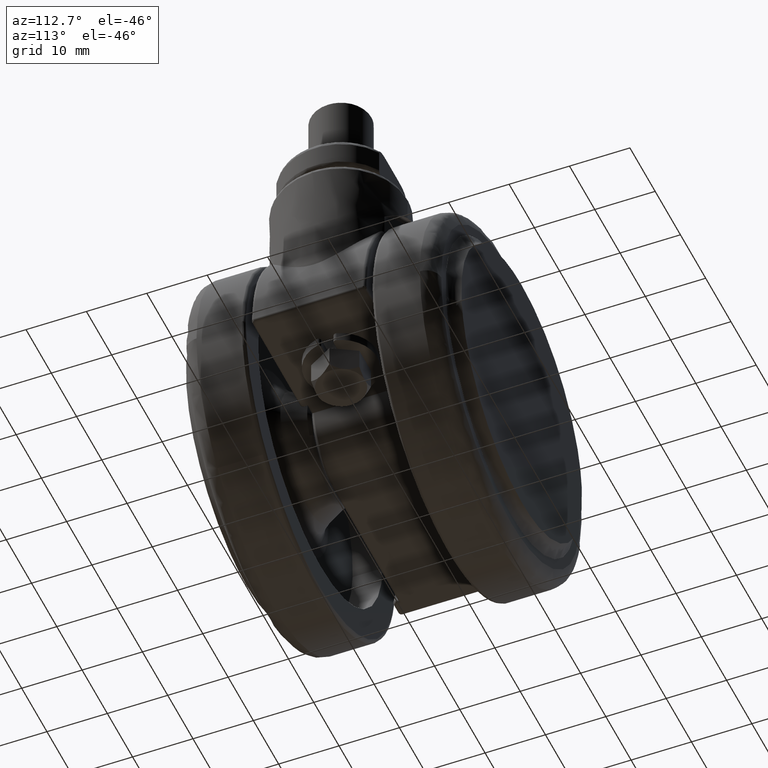
[diagram: clean part render]
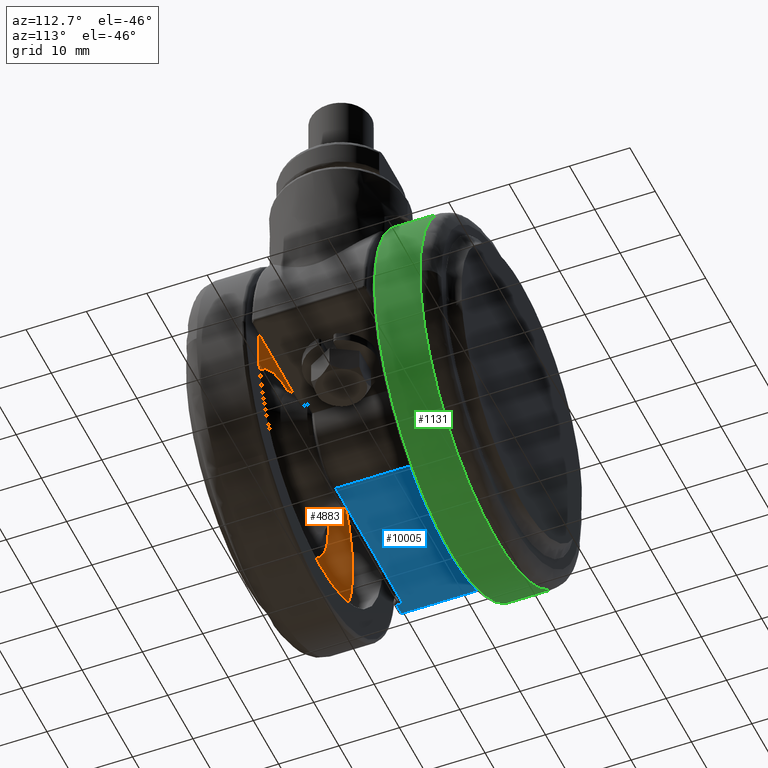
[diagram: same view with three faces highlighted in distinct colors, each labeled with its STEP entity id]
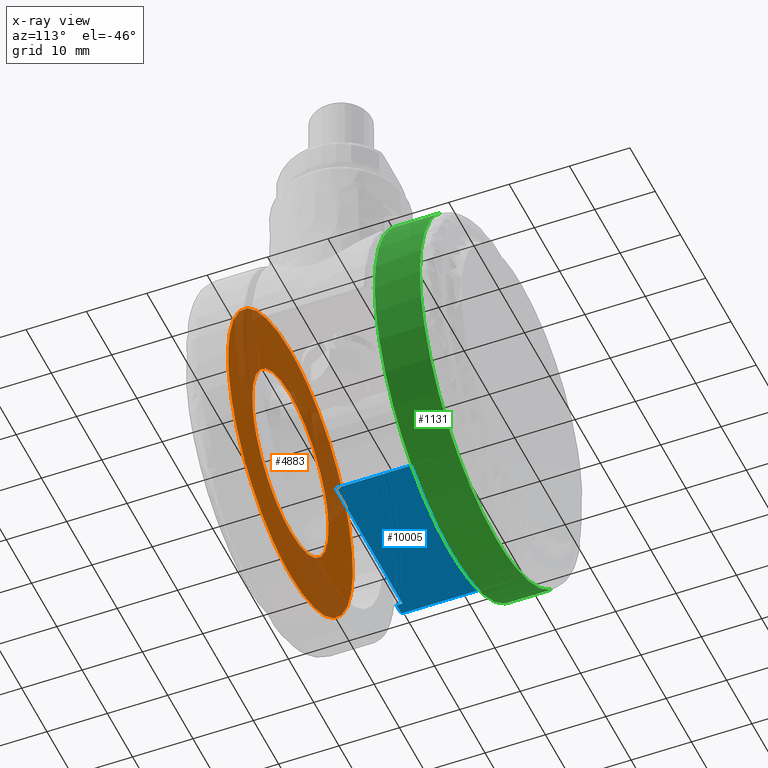
[diagram: x-ray of the same camera — body ghosted, the three highlighted faces saturated]
A machine part, auxiliary view with three faces highlighted in distinct colors.
The next image is the same camera in x-ray (body ghosted, the three faces saturated) — at least one of them is partly hidden behind the body in this view.
Their STEP definitions:

[orange] entity #4883 — the highlighted face is a freeform B-spline surface patch.
#4674=CARTESIAN_POINT('',(13.572178094426461,-15.500000000000000,-6.596151203855635));
#4675=VERTEX_POINT('',#4674);
#4689=CARTESIAN_POINT('',(0.0,-15.500000000000000,-15.090169943749450));
#4690=VERTEX_POINT('',#4689);
#4691=CARTESIAN_POINT('',(13.572178094426461,-15.500000000000002,-6.596151203855635));
#4692=CARTESIAN_POINT('',(9.444039519554178,-15.500000000000000,-15.090169943747393));
#4693=CARTESIAN_POINT('',(0.0,-15.500000000000000,-15.090169943749450));
#4701=(BOUNDED_CURVE()B_SPLINE_CURVE(2,(#4691,#4692,#4693),.UNSPECIFIED.,.F.,.U.)B_SPLINE_CURVE_WITH_KNOTS((3,3),(0.324283295446822,0.500000000000000),.UNSPECIFIED.)CURVE()GEOMETRIC_REPRESENTATION_ITEM()RATIONAL_B_SPLINE_CURVE((0.877661399761361,0.794135075216509,1.0))REPRESENTATION_ITEM(''));
#4702=EDGE_CURVE('',#4675,#4690,#4701,.T.);
#4704=CARTESIAN_POINT('',(-13.572178094426461,-15.500000000000000,6.596151203855632));
#4705=VERTEX_POINT('',#4704);
#4706=CARTESIAN_POINT('',(0.0,-15.500000000000000,-15.090169943749450));
#4707=CARTESIAN_POINT('',(-15.090169943746806,-15.500000000000004,-15.090169943750739));
#4708=CARTESIAN_POINT('',(-15.090169943742580,-15.500000000000000,-3.343666E-012));
#4709=CARTESIAN_POINT('',(-15.090169943741600,-15.500000000000004,3.472745586237286));
#4710=CARTESIAN_POINT('',(-13.572178094426461,-15.500000000000002,6.596151203855633));
#4718=(BOUNDED_CURVE()B_SPLINE_CURVE(2,(#4706,#4707,#4708,#4709,#4710),.UNSPECIFIED.,.F.,.U.)B_SPLINE_CURVE_WITH_KNOTS((3,2,3),(0.500000000000000,0.750000000000000,0.824283295446822),.UNSPECIFIED.)CURVE()GEOMETRIC_REPRESENTATION_ITEM()RATIONAL_B_SPLINE_CURVE((1.0,0.707106781186548,1.0,0.912971705970039,0.877661399761361))REPRESENTATION_ITEM(''));
#4719=EDGE_CURVE('',#4690,#4705,#4718,.T.);
#4771=CARTESIAN_POINT('',(0.0,-15.500000000000000,15.090169943749499));
#4772=VERTEX_POINT('',#4771);
#4773=CARTESIAN_POINT('',(-13.572178094426461,-15.500000000000002,6.596151203855633));
#4774=CARTESIAN_POINT('',(-9.444039519554178,-15.500000000000000,15.090169943747419));
#4775=CARTESIAN_POINT('',(0.0,-15.500000000000000,15.090169943749499));
#4783=(BOUNDED_CURVE()B_SPLINE_CURVE(2,(#4773,#4774,#4775),.UNSPECIFIED.,.F.,.U.)B_SPLINE_CURVE_WITH_KNOTS((3,3),(0.824283295446822,1.0),.UNSPECIFIED.)CURVE()GEOMETRIC_REPRESENTATION_ITEM()RATIONAL_B_SPLINE_CURVE((0.877661399761361,0.794135075216509,1.0))REPRESENTATION_ITEM(''));
#4784=EDGE_CURVE('',#4705,#4772,#4783,.T.);
#4786=CARTESIAN_POINT('',(0.0,-15.500000000000000,15.090169943749499));
#4787=CARTESIAN_POINT('',(15.090169943746806,-15.500000000000004,15.090169943750782));
#4788=CARTESIAN_POINT('',(15.090169943742580,-15.500000000000000,3.350805E-012));
#4789=CARTESIAN_POINT('',(15.090169943741600,-15.500000000000004,-3.472745586237284));
#4790=CARTESIAN_POINT('',(13.572178094426461,-15.500000000000002,-6.596151203855635));
#4798=(BOUNDED_CURVE()B_SPLINE_CURVE(2,(#4786,#4787,#4788,#4789,#4790),.UNSPECIFIED.,.F.,.U.)B_SPLINE_CURVE_WITH_KNOTS((3,2,3),(0.0,0.250000000000000,0.324283295446822),.UNSPECIFIED.)CURVE()GEOMETRIC_REPRESENTATION_ITEM()RATIONAL_B_SPLINE_CURVE((1.0,0.707106781186548,1.0,0.912971705970039,0.877661399761361))REPRESENTATION_ITEM(''));
#4799=EDGE_CURVE('',#4772,#4675,#4798,.T.);
#4806=CARTESIAN_POINT('',(-27.128200924537900,-15.500000000000000,27.128807895900110));
#4807=CARTESIAN_POINT('',(-27.128200924537900,-15.500000000000000,-27.128809219022820));
#4808=CARTESIAN_POINT('',(27.128200042456101,-15.500000000000000,27.128807895900110));
#4809=CARTESIAN_POINT('',(27.128200042456101,-15.500000000000000,-27.128809219022820));
#4810=B_SPLINE_SURFACE_WITH_KNOTS('',1,1,((#4806,#4808),(#4807,#4809)),.UNSPECIFIED.,.F.,.F.,.U.,(2,2),(2,2),(0.0,54.257617114922930),(0.0,54.256400966994001),.UNSPECIFIED.);
#4811=CARTESIAN_POINT('',(0.0,-15.500000000000000,24.664794973643449));
#4812=VERTEX_POINT('',#4811);
#4813=CARTESIAN_POINT('',(24.618791379059719,-15.500000000000400,1.505729765197701));
#4814=VERTEX_POINT('',#4813);
#4815=CARTESIAN_POINT('',(0.0,-15.500000000000000,24.664794973643449));
#4816=CARTESIAN_POINT('',(23.202341104085132,-15.500000000000199,24.664794973643200));
#4817=CARTESIAN_POINT('',(24.618791379059715,-15.500000000000400,1.505729765197701));
#4825=(BOUNDED_CURVE()B_SPLINE_CURVE(2,(#4815,#4816,#4817),.UNSPECIFIED.,.F.,.U.)B_SPLINE_CURVE_WITH_KNOTS((3,3),(0.0,0.239333102037472),.UNSPECIFIED.)CURVE()GEOMETRIC_REPRESENTATION_ITEM()RATIONAL_B_SPLINE_CURVE((1.0,0.719603829502545,0.976072341281761))REPRESENTATION_ITEM(''));
#4826=EDGE_CURVE('',#4812,#4814,#4825,.T.);
#4827=ORIENTED_EDGE('',*,*,#4826,.T.);
#4828=CARTESIAN_POINT('',(0.0,-15.500000000000000,-24.664794973643449));
#4829=VERTEX_POINT('',#4828);
#4830=CARTESIAN_POINT('',(24.618791379059715,-15.500000000000400,1.505729765197701));
#4831=CARTESIAN_POINT('',(24.664794973635484,-15.500000000000394,0.753567641739989));
#4832=CARTESIAN_POINT('',(24.664794973635601,-15.500000000000380,-4.815570E-013));
#4833=CARTESIAN_POINT('',(24.664794973639637,-15.500000000000187,-24.664794973643680));
#4834=CARTESIAN_POINT('',(0.0,-15.500000000000000,-24.664794973643449));
#4842=(BOUNDED_CURVE()B_SPLINE_CURVE(2,(#4830,#4831,#4832,#4833,#4834),.UNSPECIFIED.,.F.,.U.)B_SPLINE_CURVE_WITH_KNOTS((3,2,3),(0.239333102037472,0.250000000000000,0.500000000000000),.UNSPECIFIED.)CURVE()GEOMETRIC_REPRESENTATION_ITEM()RATIONAL_B_SPLINE_CURVE((0.976072341281761,0.987502951684003,1.0,0.707106781186548,1.0))REPRESENTATION_ITEM(''));
#4843=EDGE_CURVE('',#4814,#4829,#4842,.T.);
#4844=ORIENTED_EDGE('',*,*,#4843,.T.);
#4845=CARTESIAN_POINT('',(-24.618791379059719,-15.500000000000400,-1.505729765197698));
#4846=VERTEX_POINT('',#4845);
#4847=CARTESIAN_POINT('',(0.0,-15.500000000000000,-24.664794973643449));
#4848=CARTESIAN_POINT('',(-23.202341104085132,-15.500000000000199,-24.664794973643200));
#4849=CARTESIAN_POINT('',(-24.618791379059726,-15.500000000000400,-1.505729765197698));
#4857=(BOUNDED_CURVE()B_SPLINE_CURVE(2,(#4847,#4848,#4849),.UNSPECIFIED.,.F.,.U.)B_SPLINE_CURVE_WITH_KNOTS((3,3),(0.500000000000000,0.739333102037472),.UNSPECIFIED.)CURVE()GEOMETRIC_REPRESENTATION_ITEM()RATIONAL_B_SPLINE_CURVE((1.0,0.719603829502545,0.976072341281761))REPRESENTATION_ITEM(''));
#4858=EDGE_CURVE('',#4829,#4846,#4857,.T.);
#4859=ORIENTED_EDGE('',*,*,#4858,.T.);
#4860=CARTESIAN_POINT('',(-24.618791379059726,-15.500000000000400,-1.505729765197698));
#4861=CARTESIAN_POINT('',(-24.664794973635484,-15.500000000000394,-0.753567641739988));
#4862=CARTESIAN_POINT('',(-24.664794973635601,-15.500000000000380,4.809106E-013));
#4863=CARTESIAN_POINT('',(-24.664794973639637,-15.500000000000187,24.664794973643680));
#4864=CARTESIAN_POINT('',(0.0,-15.500000000000000,24.664794973643449));
#4872=(BOUNDED_CURVE()B_SPLINE_CURVE(2,(#4860,#4861,#4862,#4863,#4864),.UNSPECIFIED.,.F.,.U.)B_SPLINE_CURVE_WITH_KNOTS((3,2,3),(0.739333102037472,0.750000000000000,1.0),.UNSPECIFIED.)CURVE()GEOMETRIC_REPRESENTATION_ITEM()RATIONAL_B_SPLINE_CURVE((0.976072341281761,0.987502951684003,1.0,0.707106781186548,1.0))REPRESENTATION_ITEM(''));
#4873=EDGE_CURVE('',#4846,#4812,#4872,.T.);
#4874=ORIENTED_EDGE('',*,*,#4873,.T.);
#4875=EDGE_LOOP('',(#4827,#4844,#4859,#4874));
#4876=FACE_OUTER_BOUND('',#4875,.T.);
#4877=ORIENTED_EDGE('',*,*,#4719,.F.);
#4878=ORIENTED_EDGE('',*,*,#4702,.F.);
#4879=ORIENTED_EDGE('',*,*,#4799,.F.);
#4880=ORIENTED_EDGE('',*,*,#4784,.F.);
#4881=EDGE_LOOP('',(#4877,#4878,#4879,#4880));
#4882=FACE_BOUND('',#4881,.T.);
#4883=ADVANCED_FACE('',(#4876,#4882),#4810,.F.);

[blue] entity #10005 — the highlighted face is a freeform B-spline surface patch.
#9055=CARTESIAN_POINT('',(-26.522687288762299,8.999999999999901,-8.500000000000000));
#9056=VERTEX_POINT('',#9055);
#9099=CARTESIAN_POINT('',(-26.522687288762299,7.999999999999900,-8.500000000000000));
#9100=VERTEX_POINT('',#9099);
#9114=CARTESIAN_POINT('',(-26.522687288762299,8.999999999999901,-8.500000000000000));
#9115=CARTESIAN_POINT('',(-26.522687288762299,7.999999999999900,-8.500000000000000));
#9116=QUASI_UNIFORM_CURVE('',1,(#9114,#9115),.UNSPECIFIED.,.F.,.U.);
#9117=EDGE_CURVE('',#9056,#9100,#9116,.T.);
#9139=CARTESIAN_POINT('',(-28.394541729001350,8.999999999999901,-8.500000000000000));
#9140=VERTEX_POINT('',#9139);
#9156=CARTESIAN_POINT('',(-28.394541729001350,8.999999999999901,-8.500000000000000));
#9157=CARTESIAN_POINT('',(-26.522687288762299,8.999999999999901,-8.500000000000000));
#9158=QUASI_UNIFORM_CURVE('',1,(#9156,#9157),.UNSPECIFIED.,.F.,.U.);
#9159=EDGE_CURVE('',#9140,#9056,#9158,.T.);
#9178=CARTESIAN_POINT('',(0.0,7.999999999999900,-8.500000000000000));
#9179=VERTEX_POINT('',#9178);
#9193=CARTESIAN_POINT('',(-26.522687288762299,7.999999999999900,-8.500000000000000));
#9194=CARTESIAN_POINT('',(0.0,7.999999999999900,-8.500000000000000));
#9195=QUASI_UNIFORM_CURVE('',1,(#9193,#9194),.UNSPECIFIED.,.F.,.U.);
#9196=EDGE_CURVE('',#9100,#9179,#9195,.T.);
#9325=CARTESIAN_POINT('',(-28.394541729001350,-8.999999999999890,-8.500000000000000));
#9326=VERTEX_POINT('',#9325);
#9342=CARTESIAN_POINT('',(-28.394541729001350,-8.999999999999890,-8.500000000000000));
#9343=CARTESIAN_POINT('',(-28.394541729001350,8.999999999999901,-8.500000000000000));
#9344=QUASI_UNIFORM_CURVE('',1,(#9342,#9343),.UNSPECIFIED.,.F.,.U.);
#9345=EDGE_CURVE('',#9326,#9140,#9344,.T.);
#9487=CARTESIAN_POINT('',(-26.522687288762199,-8.999999999999890,-8.500000000000000));
#9488=VERTEX_POINT('',#9487);
#9504=CARTESIAN_POINT('',(-26.522687288762199,-8.999999999999890,-8.500000000000000));
#9505=CARTESIAN_POINT('',(-28.394541729001350,-8.999999999999890,-8.500000000000000));
#9506=QUASI_UNIFORM_CURVE('',1,(#9504,#9505),.UNSPECIFIED.,.F.,.U.);
#9507=EDGE_CURVE('',#9488,#9326,#9506,.T.);
#9650=CARTESIAN_POINT('',(-26.522687288762199,-7.999999999999889,-8.500000000000000));
#9651=VERTEX_POINT('',#9650);
#9652=CARTESIAN_POINT('',(-26.522687288762199,-7.999999999999889,-8.500000000000000));
#9653=CARTESIAN_POINT('',(-26.522687288762199,-8.999999999999890,-8.500000000000000));
#9654=QUASI_UNIFORM_CURVE('',1,(#9652,#9653),.UNSPECIFIED.,.F.,.U.);
#9655=EDGE_CURVE('',#9651,#9488,#9654,.T.);
#9729=CARTESIAN_POINT('',(0.0,-7.999999999999900,-8.500000000000000));
#9730=VERTEX_POINT('',#9729);
#9731=CARTESIAN_POINT('',(0.0,-7.999999999999900,-8.500000000000000));
#9732=CARTESIAN_POINT('',(-26.522687288762199,-7.999999999999889,-8.500000000000000));
#9733=QUASI_UNIFORM_CURVE('',1,(#9731,#9732),.UNSPECIFIED.,.F.,.U.);
#9734=EDGE_CURVE('',#9730,#9651,#9733,.T.);
#9986=CARTESIAN_POINT('',(1.418307304329486,-9.899099965112390,-8.500000000000000));
#9987=CARTESIAN_POINT('',(-29.812849794931800,-9.899099965112390,-8.500000000000000));
#9988=CARTESIAN_POINT('',(1.418307304329486,9.899100447910019,-8.500000000000000));
#9989=CARTESIAN_POINT('',(-29.812849794931800,9.899100447910019,-8.500000000000000));
#9990=B_SPLINE_SURFACE_WITH_KNOTS('',1,1,((#9986,#9988),(#9987,#9989)),.UNSPECIFIED.,.F.,.F.,.U.,(2,2),(2,2),(0.0,31.231157099261281),(0.0,19.798200413022411),.UNSPECIFIED.);
#9991=ORIENTED_EDGE('',*,*,#9117,.T.);
#9992=ORIENTED_EDGE('',*,*,#9196,.T.);
#9993=CARTESIAN_POINT('',(0.0,7.999999999999900,-8.500000000000000));
#9994=CARTESIAN_POINT('',(0.0,-7.999999999999900,-8.500000000000000));
#9995=QUASI_UNIFORM_CURVE('',1,(#9993,#9994),.UNSPECIFIED.,.F.,.U.);
#9996=EDGE_CURVE('',#9179,#9730,#9995,.T.);
#9997=ORIENTED_EDGE('',*,*,#9996,.T.);
#9998=ORIENTED_EDGE('',*,*,#9734,.T.);
#9999=ORIENTED_EDGE('',*,*,#9655,.T.);
#10000=ORIENTED_EDGE('',*,*,#9507,.T.);
#10001=ORIENTED_EDGE('',*,*,#9345,.T.);
#10002=ORIENTED_EDGE('',*,*,#9159,.T.);
#10003=EDGE_LOOP('',(#9991,#9992,#9997,#9998,#9999,#10000,#10001,#10002));
#10004=FACE_OUTER_BOUND('',#10003,.T.);
#10005=ADVANCED_FACE('',(#10004),#9990,.T.);

[green] entity #1131 — the highlighted face is a freeform B-spline surface patch.
#906=CARTESIAN_POINT('',(-21.761231919898879,10.999999999927139,-20.650636438821259));
#907=VERTEX_POINT('',#906);
#923=CARTESIAN_POINT('',(1.347067E-015,11.0,-30.0));
#924=VERTEX_POINT('',#923);
#925=CARTESIAN_POINT('',(-21.761231919898893,10.999999999927157,-20.650636438821273));
#926=CARTESIAN_POINT('',(-12.889017858354073,10.999999999970051,-30.000000000000004));
#927=CARTESIAN_POINT('',(1.347067E-015,11.0,-30.0));
#935=(BOUNDED_CURVE()B_SPLINE_CURVE(2,(#925,#926,#927),.UNSPECIFIED.,.F.,.U.)B_SPLINE_CURVE_WITH_KNOTS((3,3),(0.371049520889213,0.500000000000000),.UNSPECIFIED.)CURVE()GEOMETRIC_REPRESENTATION_ITEM()RATIONAL_B_SPLINE_CURVE((0.853699661796709,0.848925116422819,1.0))REPRESENTATION_ITEM(''));
#936=EDGE_CURVE('',#907,#924,#935,.T.);
#938=CARTESIAN_POINT('',(29.990525678498560,10.999999999857030,-0.753902863317287));
#939=VERTEX_POINT('',#938);
#940=CARTESIAN_POINT('',(1.347067E-015,11.0,-30.0));
#941=CARTESIAN_POINT('',(29.255336285402727,10.999999999928511,-30.0));
#942=CARTESIAN_POINT('',(29.990525678498564,10.999999999857028,-0.753902863317287));
#950=(BOUNDED_CURVE()B_SPLINE_CURVE(2,(#940,#941,#942),.UNSPECIFIED.,.F.,.U.)B_SPLINE_CURVE_WITH_KNOTS((3,3),(0.500000000000000,0.745579891769707),.UNSPECIFIED.)CURVE()GEOMETRIC_REPRESENTATION_ITEM()RATIONAL_B_SPLINE_CURVE((1.0,0.712285260094844,0.989826157681350))REPRESENTATION_ITEM(''));
#951=EDGE_CURVE('',#924,#939,#950,.T.);
#1002=CARTESIAN_POINT('',(21.761231919898879,10.999999999927130,20.650636438821259));
#1003=VERTEX_POINT('',#1002);
#1004=CARTESIAN_POINT('',(29.990525678498564,10.999999999857028,-0.753902863317287));
#1005=CARTESIAN_POINT('',(29.999999999999996,10.999999999857900,-0.377010963709973));
#1006=CARTESIAN_POINT('',(30.0,10.999999999858799,-3.289332E-016));
#1007=CARTESIAN_POINT('',(29.999999999999996,10.999999999887317,11.968785714438772));
#1008=CARTESIAN_POINT('',(21.761231919898893,10.999999999927150,20.650636438821273));
#1016=(BOUNDED_CURVE()B_SPLINE_CURVE(2,(#1004,#1005,#1006,#1007,#1008),.UNSPECIFIED.,.F.,.U.)B_SPLINE_CURVE_WITH_KNOTS((3,2,3),(0.745579891769707,0.750000000000000,0.871049520889213),.UNSPECIFIED.)CURVE()GEOMETRIC_REPRESENTATION_ITEM()RATIONAL_B_SPLINE_CURVE((0.989826157681350,0.994821521091703,1.0,0.858181664763729,0.853699661796709))REPRESENTATION_ITEM(''));
#1017=EDGE_CURVE('',#939,#1003,#1016,.T.);
#1051=CARTESIAN_POINT('',(-21.761231130368621,18.687500000279488,-20.650637270812609));
#1052=CARTESIAN_POINT('',(-1.110593859556006,18.687500000279481,-42.411868401181231));
#1053=CARTESIAN_POINT('',(20.650637270812620,18.687500000279481,-21.761231130368621));
#1054=CARTESIAN_POINT('',(42.411868401181231,18.687500000279481,-1.110593859556008));
#1055=CARTESIAN_POINT('',(21.761231130368628,18.687500000279481,20.650637270812609));
#1056=CARTESIAN_POINT('',(-21.761231130368621,10.807812499846470,-20.650637270812609));
#1057=CARTESIAN_POINT('',(-1.110593859556007,10.807812499846467,-42.411868401181231));
#1058=CARTESIAN_POINT('',(20.650637270812609,10.807812499846470,-21.761231130368621));
#1059=CARTESIAN_POINT('',(42.411868401181231,10.807812499846461,-1.110593859556008));
#1060=CARTESIAN_POINT('',(21.761231130368621,10.807812499846460,20.650637270812609));
#1068=(BOUNDED_SURFACE()B_SPLINE_SURFACE(2,1,((#1051,#1056),(#1052,#1057),(#1053,#1058),(#1054,#1059),(#1055,#1060)),.UNSPECIFIED.,.F.,.F.,.U.)B_SPLINE_SURFACE_WITH_KNOTS((3,2,3),(2,2),(0.0,49.705627484771391,99.411254969542782),(0.0,7.879687500433019),.UNSPECIFIED.)GEOMETRIC_REPRESENTATION_ITEM()RATIONAL_B_SPLINE_SURFACE(((1.0,1.0),(0.707106781186548,0.707106781186548),(1.0,1.0),(0.707106781186548,0.707106781186548),(1.0,1.0)))REPRESENTATION_ITEM('')SURFACE());
#1069=ORIENTED_EDGE('',*,*,#936,.F.);
#1070=CARTESIAN_POINT('',(-21.761231910157260,18.500000000139579,-20.650636449086779));
#1071=VERTEX_POINT('',#1070);
#1072=CARTESIAN_POINT('',(-21.761231910157260,18.500000000139579,-20.650636449086779));
#1073=CARTESIAN_POINT('',(-21.761231919898879,10.999999999927139,-20.650636438821259));
#1074=QUASI_UNIFORM_CURVE('',1,(#1072,#1073),.UNSPECIFIED.,.F.,.U.);
#1075=EDGE_CURVE('',#1071,#907,#1074,.T.);
#1076=ORIENTED_EDGE('',*,*,#1075,.F.);
#1077=CARTESIAN_POINT('',(2.265522E-015,18.500000000000000,-30.0));
#1078=VERTEX_POINT('',#1077);
#1079=CARTESIAN_POINT('',(-21.761231910157278,18.500000000139583,-20.650636449086800));
#1080=CARTESIAN_POINT('',(-12.889017849971932,18.500000000057831,-29.999999999999993));
#1081=CARTESIAN_POINT('',(2.265522E-015,18.500000000000000,-30.0));
#1089=(BOUNDED_CURVE()B_SPLINE_CURVE(2,(#1079,#1080,#1081),.UNSPECIFIED.,.F.,.U.)B_SPLINE_CURVE_WITH_KNOTS((3,3),(0.371049520960404,0.500000000000000),.UNSPECIFIED.)CURVE()GEOMETRIC_REPRESENTATION_ITEM()RATIONAL_B_SPLINE_CURVE((0.853699661791437,0.848925116506225,1.0))REPRESENTATION_ITEM(''));
#1090=EDGE_CURVE('',#1071,#1078,#1089,.T.);
#1091=ORIENTED_EDGE('',*,*,#1090,.T.);
#1092=CARTESIAN_POINT('',(30.0,18.500000000269171,-1.416014E-014));
#1093=VERTEX_POINT('',#1092);
#1094=CARTESIAN_POINT('',(2.265522E-015,18.500000000000000,-30.0));
#1095=CARTESIAN_POINT('',(29.999999999999975,18.500000000134591,-30.000000000000004));
#1096=CARTESIAN_POINT('',(29.999999999999996,18.500000000269175,-1.416014E-014));
#1104=(BOUNDED_CURVE()B_SPLINE_CURVE(2,(#1094,#1095,#1096),.UNSPECIFIED.,.F.,.U.)B_SPLINE_CURVE_WITH_KNOTS((3,3),(0.500000000000000,0.750000000000000),.UNSPECIFIED.)CURVE()GEOMETRIC_REPRESENTATION_ITEM()RATIONAL_B_SPLINE_CURVE((1.0,0.707106781186548,1.000000000000000))REPRESENTATION_ITEM(''));
#1105=EDGE_CURVE('',#1078,#1093,#1104,.T.);
#1106=ORIENTED_EDGE('',*,*,#1105,.T.);
#1107=CARTESIAN_POINT('',(21.761231910157271,18.500000000139561,20.650636449086779));
#1108=VERTEX_POINT('',#1107);
#1109=CARTESIAN_POINT('',(30.000000000000011,18.500000000269178,-1.416014E-014));
#1110=CARTESIAN_POINT('',(30.000000000000004,18.500000000215476,11.968785722641076));
#1111=CARTESIAN_POINT('',(21.761231910157274,18.500000000139565,20.650636449086807));
#1119=(BOUNDED_CURVE()B_SPLINE_CURVE(2,(#1109,#1110,#1111),.UNSPECIFIED.,.F.,.U.)B_SPLINE_CURVE_WITH_KNOTS((3,3),(0.750000000000000,0.871049520960404),.UNSPECIFIED.)CURVE()GEOMETRIC_REPRESENTATION_ITEM()RATIONAL_B_SPLINE_CURVE((1.0,0.858181664680323,0.853699661791437))REPRESENTATION_ITEM(''));
#1120=EDGE_CURVE('',#1093,#1108,#1119,.T.);
#1121=ORIENTED_EDGE('',*,*,#1120,.T.);
#1122=CARTESIAN_POINT('',(21.761231910157271,18.500000000139561,20.650636449086779));
#1123=CARTESIAN_POINT('',(21.761231919898879,10.999999999927130,20.650636438821259));
#1124=QUASI_UNIFORM_CURVE('',1,(#1122,#1123),.UNSPECIFIED.,.F.,.U.);
#1125=EDGE_CURVE('',#1108,#1003,#1124,.T.);
#1126=ORIENTED_EDGE('',*,*,#1125,.T.);
#1127=ORIENTED_EDGE('',*,*,#1017,.F.);
#1128=ORIENTED_EDGE('',*,*,#951,.F.);
#1129=EDGE_LOOP('',(#1069,#1076,#1091,#1106,#1121,#1126,#1127,#1128));
#1130=FACE_OUTER_BOUND('',#1129,.T.);
#1131=ADVANCED_FACE('',(#1130),#1068,.T.);